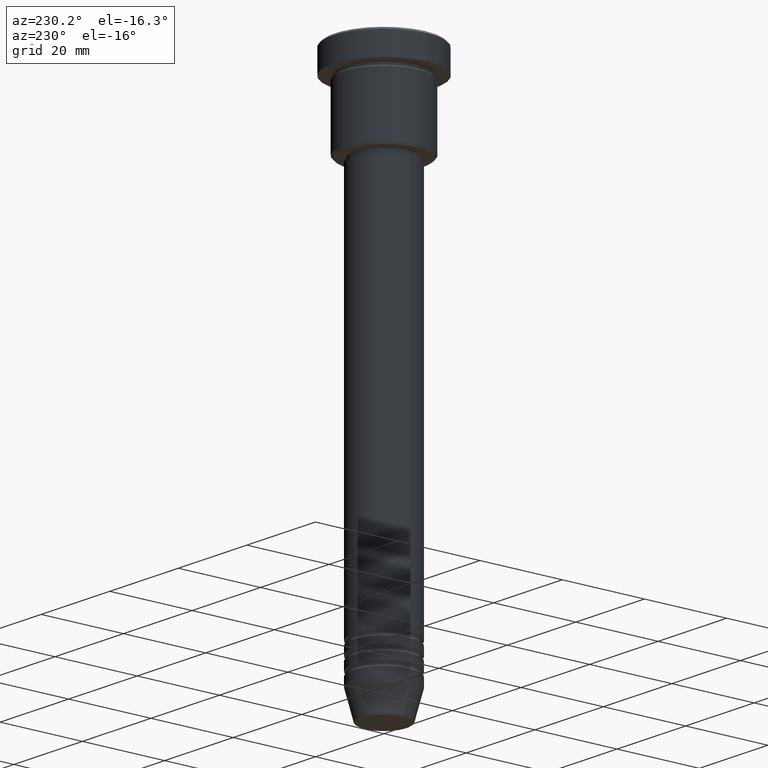
[diagram: clean part render]
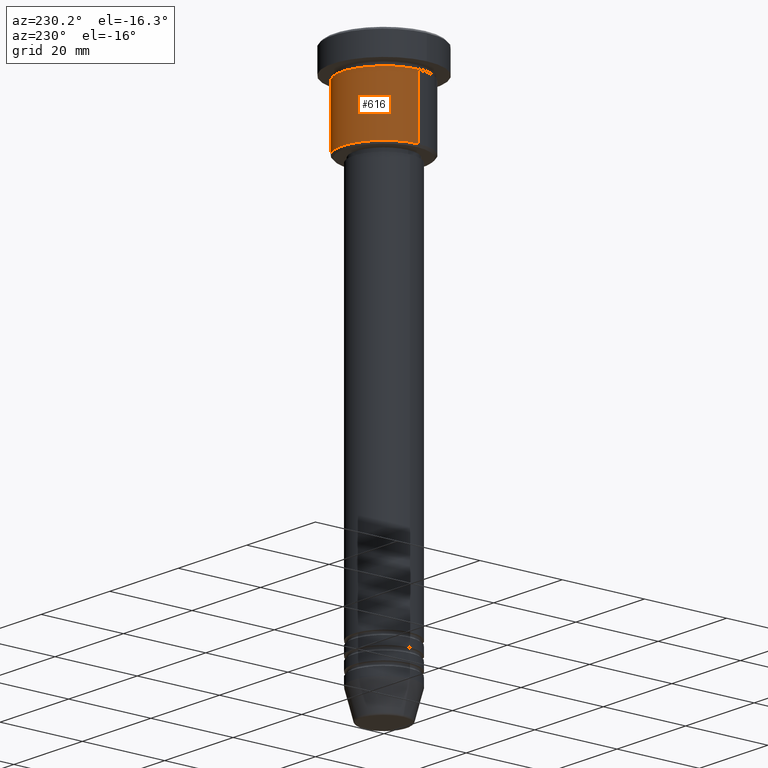
[diagram: same view with one face highlighted and labeled with its STEP entity id]
A machine part, auxiliary view. The second image highlights one B-rep face of the part: STEP entity #616.
In plain terms, the highlighted cylindrical surface (partial cylindrical patch) has radius 10 mm, axis along (-0, -0, 1).
Its self-contained STEP definition (entity closure, byte-faithful):
#19 = VERTEX_POINT ( 'NONE', #906 ) ;
#32 = DIRECTION ( 'NONE',  ( -1.000000000000000000, 0.000000000000000000, 0.000000000000000000 ) ) ;
#45 = EDGE_CURVE ( 'NONE', #226, #19, #71, .T. ) ;
#54 = FACE_OUTER_BOUND ( 'NONE', #268, .T. ) ;
#71 = LINE ( 'NONE', #445, #958 ) ;
#110 = ORIENTED_EDGE ( 'NONE', *, *, #965, .F. ) ;
#170 = CYLINDRICAL_SURFACE ( 'NONE', #1149, 10.00000000000000000 ) ;
#199 = VECTOR ( 'NONE', #692, 1000.000000000000000 ) ;
#211 = CARTESIAN_POINT ( 'NONE',  ( 0.000000000000000000, 0.000000000000000000, -21.50000000000000711 ) ) ;
#213 = VERTEX_POINT ( 'NONE', #266 ) ;
#226 = VERTEX_POINT ( 'NONE', #279 ) ;
#242 = CARTESIAN_POINT ( 'NONE',  ( 10.00000000000000000, 0.000000000000000000, 0.000000000000000000 ) ) ;
#265 = DIRECTION ( 'NONE',  ( -0.000000000000000000, -0.000000000000000000, 1.000000000000000000 ) ) ;
#266 = CARTESIAN_POINT ( 'NONE',  ( 10.00000000000000000, 0.000000000000000000, -6.999999999999996447 ) ) ;
#268 = EDGE_LOOP ( 'NONE', ( #881, #776, #349, #110 ) ) ;
#279 = CARTESIAN_POINT ( 'NONE',  ( -10.00000000000000000, 1.224646799147353256E-15, -21.50000000000000711 ) ) ;
#313 = AXIS2_PLACEMENT_3D ( 'NONE', #211, #865, #32 ) ;
#336 = EDGE_CURVE ( 'NONE', #213, #19, #348, .T. ) ;
#348 = CIRCLE ( 'NONE', #407, 10.00000000000000000 ) ;
#349 = ORIENTED_EDGE ( 'NONE', *, *, #336, .F. ) ;
#364 = CARTESIAN_POINT ( 'NONE',  ( 0.000000000000000000, 0.000000000000000000, -6.999999999999996447 ) ) ;
#407 = AXIS2_PLACEMENT_3D ( 'NONE', #364, #721, #562 ) ;
#445 = CARTESIAN_POINT ( 'NONE',  ( -10.00000000000000000, 1.224646799147353256E-15, 0.000000000000000000 ) ) ;
#491 = DIRECTION ( 'NONE',  ( -0.000000000000000000, -0.000000000000000000, 1.000000000000000000 ) ) ;
#562 = DIRECTION ( 'NONE',  ( 1.000000000000000000, 0.000000000000000000, 0.000000000000000000 ) ) ;
#616 = ADVANCED_FACE ( 'NONE', ( #54 ), #170, .T. ) ;
#653 = VERTEX_POINT ( 'NONE', #1155 ) ;
#692 = DIRECTION ( 'NONE',  ( -0.000000000000000000, -0.000000000000000000, 1.000000000000000000 ) ) ;
#721 = DIRECTION ( 'NONE',  ( -0.000000000000000000, -0.000000000000000000, 1.000000000000000000 ) ) ;
#776 = ORIENTED_EDGE ( 'NONE', *, *, #45, .T. ) ;
#827 = EDGE_CURVE ( 'NONE', #653, #226, #1111, .T. ) ;
#865 = DIRECTION ( 'NONE',  ( -0.000000000000000000, -0.000000000000000000, 1.000000000000000000 ) ) ;
#881 = ORIENTED_EDGE ( 'NONE', *, *, #827, .T. ) ;
#906 = CARTESIAN_POINT ( 'NONE',  ( -10.00000000000000000, 1.224646799147353256E-15, -6.999999999999996447 ) ) ;
#958 = VECTOR ( 'NONE', #491, 1000.000000000000000 ) ;
#965 = EDGE_CURVE ( 'NONE', #653, #213, #1164, .T. ) ;
#967 = CARTESIAN_POINT ( 'NONE',  ( 0.000000000000000000, 0.000000000000000000, 0.000000000000000000 ) ) ;
#1111 = CIRCLE ( 'NONE', #313, 10.00000000000000000 ) ;
#1149 = AXIS2_PLACEMENT_3D ( 'NONE', #967, #265, #1166 ) ;
#1155 = CARTESIAN_POINT ( 'NONE',  ( 10.00000000000000000, 0.000000000000000000, -21.50000000000000711 ) ) ;
#1164 = LINE ( 'NONE', #242, #199 ) ;
#1166 = DIRECTION ( 'NONE',  ( 1.000000000000000000, 0.000000000000000000, 0.000000000000000000 ) ) ;